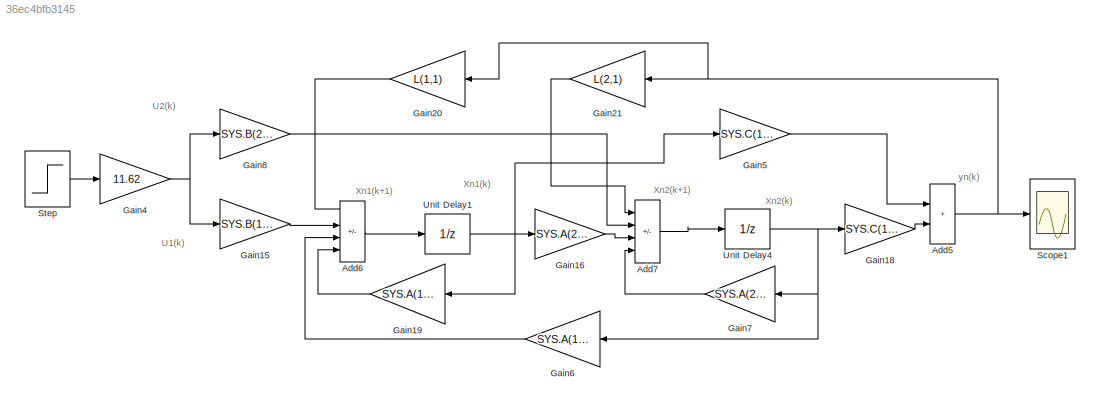
MODEL slx_36ec4bfb3145
KIND model
CONFIG AbsTol = auto
CONFIG EnableMultiTasking = off
CONFIG FixedStep = Ts
CONFIG MaxStep = auto
CONFIG MinStep = auto
CONFIG RelTol = 1e-3
CONFIG SampleTimeConstraint = Unconstrained
CONFIG SolverName = FixedStepAuto
CONFIG StartTime = 0.0
CONFIG StopTime = 0.5
BLOCK [Sum] Add5
  IconShape = rectangular
  Ports = [2, 1]
BLOCK [Sum] Add6
  IconShape = rectangular
  Inputs = -+++
  Ports = [4, 1]
BLOCK [Sum] Add7
  IconShape = rectangular
  Inputs = -+++
  Ports = [4, 1]
BLOCK [Gain] Gain15
  Gain = SYS.B(1,1)
BLOCK [Gain] Gain16
  Gain = SYS.A(2,1)
BLOCK [Gain] Gain18
  Gain = SYS.C(1,2)
BLOCK [Gain] Gain19
  Gain = SYS.A(1,1)
BLOCK [Gain] Gain20
  Gain = L(1,1)
BLOCK [Gain] Gain21
  Gain = L(2,1)
BLOCK [Gain] Gain4
  Gain = 11.62
BLOCK [Gain] Gain5
  Gain = SYS.C(1,1)
BLOCK [Gain] Gain6
  Gain = SYS.A(1,2)
BLOCK [Gain] Gain7
  Gain = SYS.A(2,2)
BLOCK [Gain] Gain8
  Gain = SYS.B(2,1)
BLOCK [Scope] Scope1
  Floating = off
  NumInputPorts = 1
  Ports = [1]
  ScopeSpecificationString = Simulink.scopes.TimeScopeBlockCfg('CurrentConfiguration', extmgr.ConfigurationSet(extmgr.Configuration('Core','General UI',true,'FigureColor',[1 1 1]),extmgr.Configuration('Core','Source UI',true),extmgr.Configuration('Sources','WiredSimulink',true,'DataLoggingDecimateData',true,'DataLoggingDecimation','1'),extmgr.Configuration('Visuals','Time Domain',true,'SerializedDisplays',{struct('MinYLimReal...<+1584ch>
BLOCK [Step] Step
  SampleTime = 0
  Time = 0
BLOCK [UnitDelay] Unit Delay1
  HasFrameUpgradeWarning = on
  SampleTime = Ts
BLOCK [UnitDelay] Unit Delay4
  HasFrameUpgradeWarning = on
  SampleTime = Ts
ANNOTATION (root): yn(k)
ANNOTATION (root): U1(k)
ANNOTATION (root): U2(k)
ANNOTATION (root): Xn1(k)
ANNOTATION (root): Xn1(k+1)
ANNOTATION (root): Xn2(k)
ANNOTATION (root): Xn2(k+1)
NET Add5:1 -> Gain20:1, Gain21:1, Scope1:1
LINE Add6:1 -> Unit Delay1:1
LINE Add7:1 -> Unit Delay4:1
LINE Gain15:1 -> Add6:2
LINE Gain16:1 -> Add7:3
LINE Gain18:1 -> Add5:2
LINE Gain19:1 -> Add6:4
LINE Gain20:1 -> Add6:1
LINE Gain21:1 -> Add7:1
NET Gain4:1 -> Gain15:1, Gain8:1
LINE Gain5:1 -> Add5:1
LINE Gain6:1 -> Add6:3
LINE Gain7:1 -> Add7:4
LINE Gain8:1 -> Add7:2
LINE Step:1 -> Gain4:1
NET Unit Delay1:1 -> Gain16:1, Gain19:1, Gain5:1
NET Unit Delay4:1 -> Gain18:1, Gain6:1, Gain7:1
note: NET lines group one-source signal fan-out (src -> all destinations, sorted); 1:1 wires keep LINE
